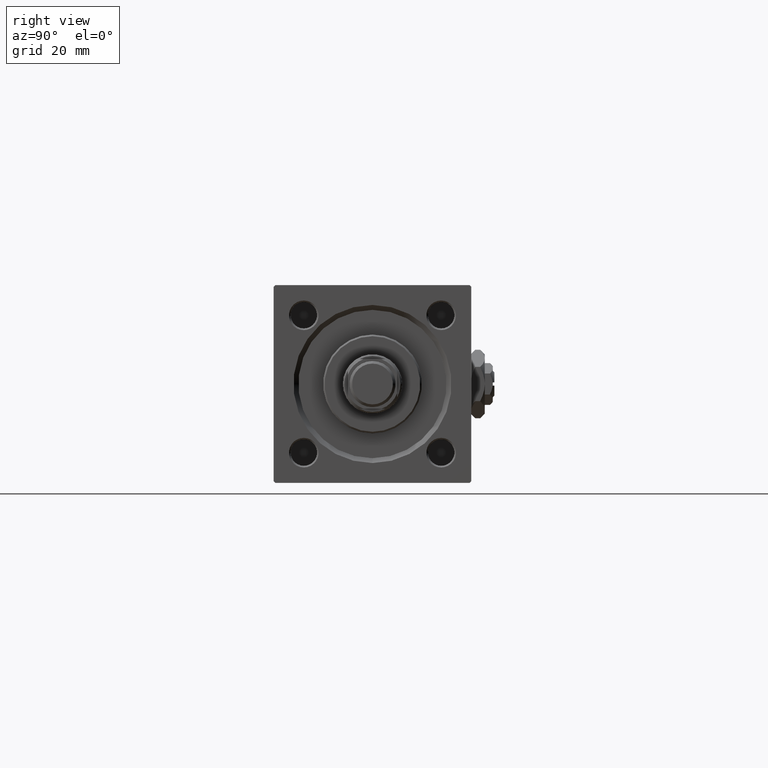
[diagram: clean part render]
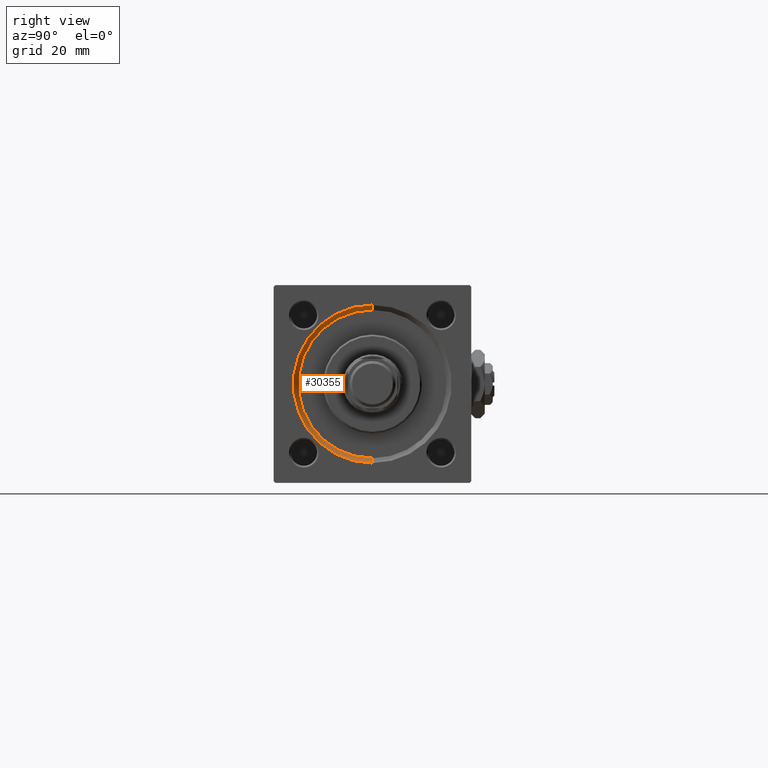
[diagram: same view with one face highlighted and labeled with its STEP entity id]
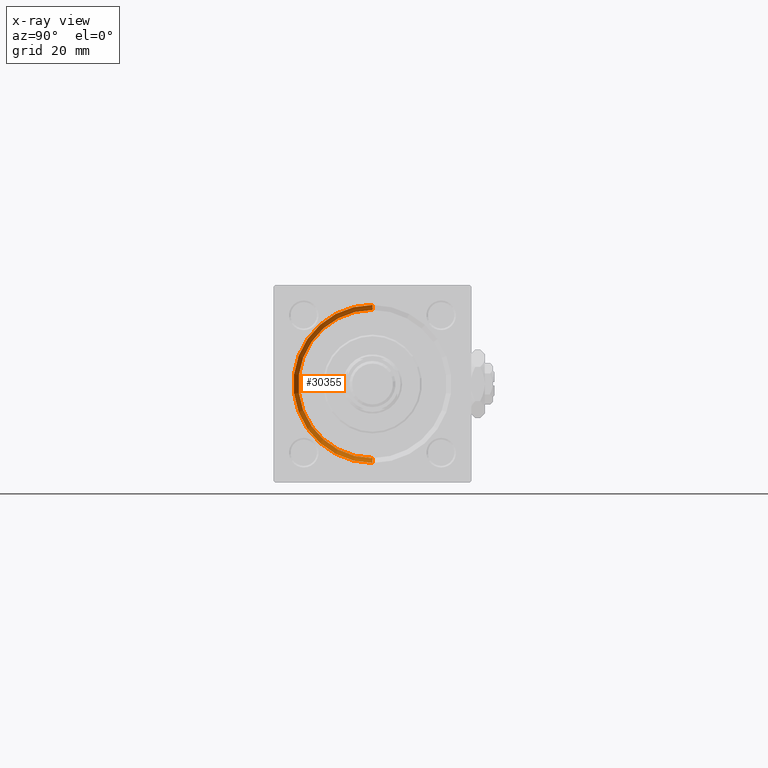
[diagram: x-ray of the same camera — body ghosted, the highlighted face saturated]
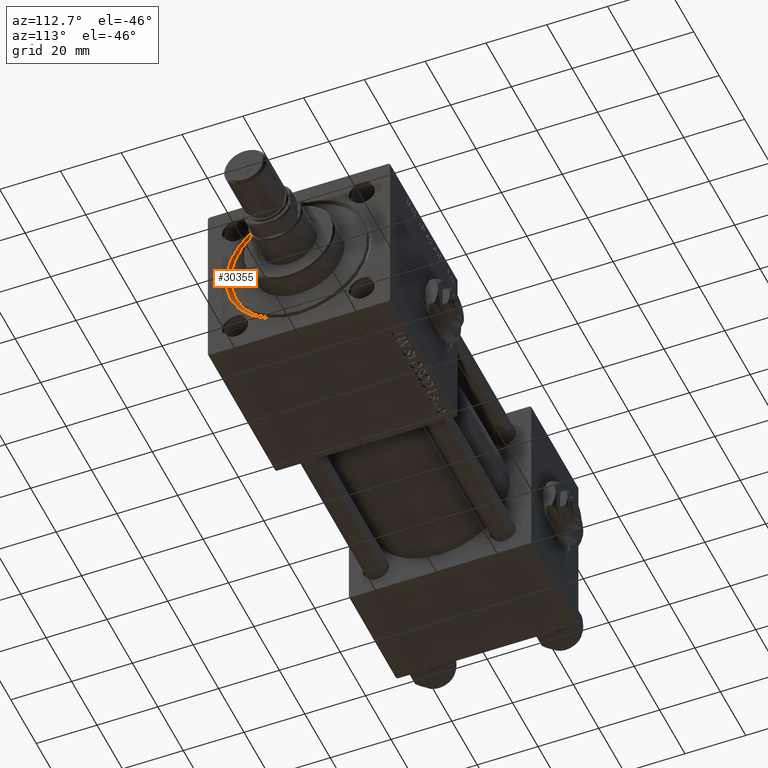
[diagram: same view with one face highlighted and labeled with its STEP entity id]
A machine part, right view. The second image highlights one B-rep face of the part: STEP entity #30355.
The next image is the same camera in x-ray: the body ghosted, the highlighted face saturated — about 0% of this face is hidden behind the body in this view.
A second angle (auxiliary view) of the same face is appended — the face is thin or edge-on in the first view.
In plain terms, the highlighted conical surface has half-angle 45 deg.
Its self-contained STEP definition (entity closure, byte-faithful):
#112 = CARTESIAN_POINT ( 'NONE',  ( 146.4999999999999432, 0.000000000000000000, 0.000000000000000000 ) ) ;
#2082 = AXIS2_PLACEMENT_3D ( 'NONE', #9122, #29122, #32605 ) ;
#6962 = EDGE_CURVE ( 'NONE', #11064, #11511, #45102, .T. ) ;
#7553 = DIRECTION ( 'NONE',  ( 0.7071067811865524577, 0.000000000000000000, -0.7071067811865426878 ) ) ;
#9122 = CARTESIAN_POINT ( 'NONE',  ( 148.0000000000000000, 0.000000000000000000, 0.000000000000000000 ) ) ;
#11036 = AXIS2_PLACEMENT_3D ( 'NONE', #44425, #45224, #21207 ) ;
#11064 = VERTEX_POINT ( 'NONE', #38777 ) ;
#11470 = VERTEX_POINT ( 'NONE', #28224 ) ;
#11511 = VERTEX_POINT ( 'NONE', #44506 ) ;
#13575 = VERTEX_POINT ( 'NONE', #21842 ) ;
#16372 = DIRECTION ( 'NONE',  ( 1.000000000000000000, 0.000000000000000000, 0.000000000000000000 ) ) ;
#19075 = EDGE_CURVE ( 'NONE', #11470, #13575, #22762, .T. ) ;
#21207 = DIRECTION ( 'NONE',  ( 0.000000000000000000, 0.000000000000000000, -1.000000000000000000 ) ) ;
#21842 = CARTESIAN_POINT ( 'NONE',  ( 148.0000000000000000, 0.000000000000000000, -24.00000000000003908 ) ) ;
#22208 = EDGE_CURVE ( 'NONE', #11064, #11470, #48238, .T. ) ;
#22762 = LINE ( 'NONE', #51579, #35701 ) ;
#25605 = DIRECTION ( 'NONE',  ( 0.7071067811865524577, 8.659560562354874926E-17, 0.7071067811865426878 ) ) ;
#27178 = ORIENTED_EDGE ( 'NONE', *, *, #22208, .F. ) ;
#28224 = CARTESIAN_POINT ( 'NONE',  ( 146.4999999999999432, 0.000000000000000000, -22.50000000000000355 ) ) ;
#29122 = DIRECTION ( 'NONE',  ( -1.000000000000000000, 0.000000000000000000, -0.000000000000000000 ) ) ;
#29768 = CONICAL_SURFACE ( 'NONE', #11036, 22.50000000000000355, 0.7853981633974415066 ) ;
#29792 = ORIENTED_EDGE ( 'NONE', *, *, #48001, .F. ) ;
#30355 = ADVANCED_FACE ( 'NONE', ( #32421 ), #29768, .F. ) ;
#32421 = FACE_OUTER_BOUND ( 'NONE', #43378, .T. ) ;
#32605 = DIRECTION ( 'NONE',  ( 0.000000000000000000, 0.000000000000000000, 1.000000000000000000 ) ) ;
#32948 = AXIS2_PLACEMENT_3D ( 'NONE', #112, #16372, #46201 ) ;
#35701 = VECTOR ( 'NONE', #7553, 1000.000000000000000 ) ;
#38777 = CARTESIAN_POINT ( 'NONE',  ( 146.4999999999999432, 2.755455298081545172E-15, 22.50000000000000355 ) ) ;
#39682 = VECTOR ( 'NONE', #25605, 1000.000000000000000 ) ;
#41362 = CARTESIAN_POINT ( 'NONE',  ( 146.4999999999999432, 2.755455298081545172E-15, 22.50000000000000355 ) ) ;
#43378 = EDGE_LOOP ( 'NONE', ( #27178, #51203, #29792, #48723 ) ) ;
#44425 = CARTESIAN_POINT ( 'NONE',  ( 146.4999999999999432, 0.000000000000000000, 0.000000000000000000 ) ) ;
#44506 = CARTESIAN_POINT ( 'NONE',  ( 148.0000000000000000, 2.939152317953652628E-15, 24.00000000000003908 ) ) ;
#45102 = LINE ( 'NONE', #41362, #39682 ) ;
#45224 = DIRECTION ( 'NONE',  ( 1.000000000000000000, 0.000000000000000000, 0.000000000000000000 ) ) ;
#46201 = DIRECTION ( 'NONE',  ( 0.000000000000000000, 0.000000000000000000, 1.000000000000000000 ) ) ;
#48001 = EDGE_CURVE ( 'NONE', #13575, #11511, #48926, .T. ) ;
#48238 = CIRCLE ( 'NONE', #32948, 22.50000000000000355 ) ;
#48723 = ORIENTED_EDGE ( 'NONE', *, *, #19075, .F. ) ;
#48926 = CIRCLE ( 'NONE', #2082, 24.00000000000003908 ) ;
#51203 = ORIENTED_EDGE ( 'NONE', *, *, #6962, .T. ) ;
#51579 = CARTESIAN_POINT ( 'NONE',  ( 146.4999999999999432, 0.000000000000000000, -22.50000000000000355 ) ) ;